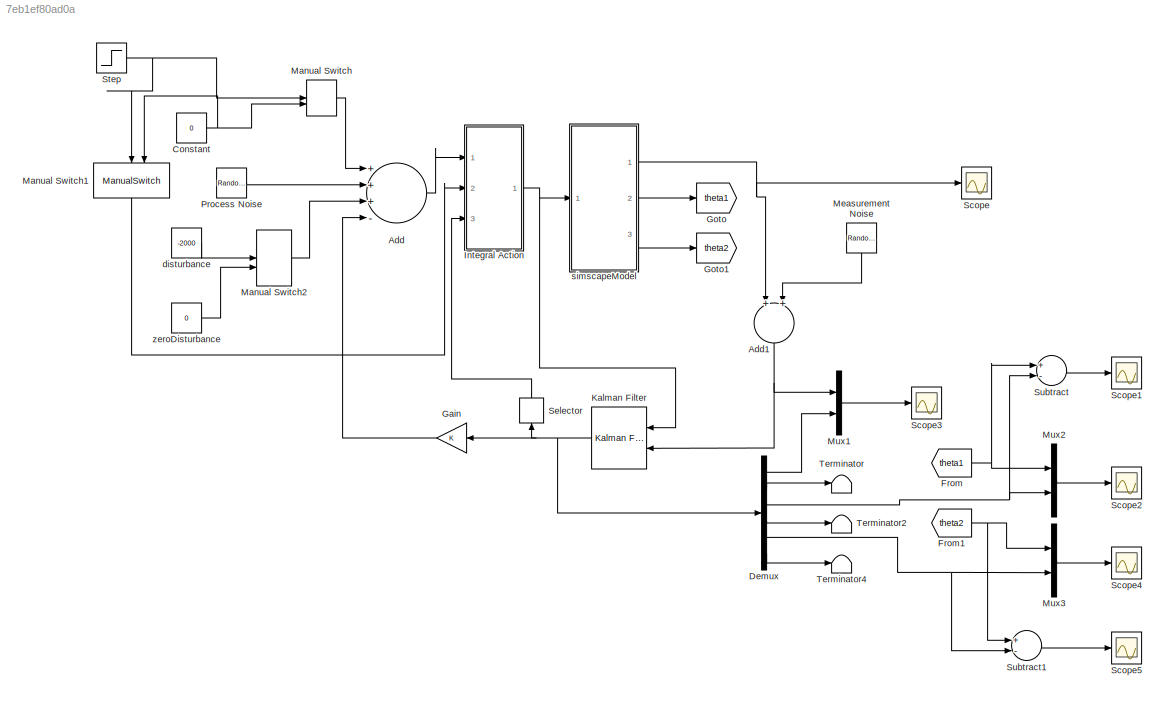
MODEL slx_7eb1ef80ad0a
KIND model
CONFIG AbsTol = auto
CONFIG FixedStep = auto
CONFIG MaxStep = auto
CONFIG MinStep = auto
CONFIG RelTol = 1e-3
CONFIG SampleTimeConstraint = Unconstrained
CONFIG Solver = VariableStepAuto
CONFIG SolverMode = Auto
CONFIG SolverName = VariableStepAuto
CONFIG StartTime = 0.0
CONFIG StopTime = 50
BLOCK [Sum] Add
  InputSameDT = off
  Inputs = +++-
  OutDataTypeStr = Inherit: Inherit via internal rule
  Ports = [4, 1]
  SaturateOnIntegerOverflow = off
BLOCK [Sum] Add1
  InputSameDT = off
  OutDataTypeStr = Inherit: Inherit via internal rule
  Ports = [2, 1]
  SaturateOnIntegerOverflow = off
BLOCK [Constant] Constant
  Value = 0
BLOCK [Demux] Demux
  DisplayOption = bar
  Outputs = 6
  Ports = [1, 6]
BLOCK [From] From
  GotoTag = theta1
BLOCK [From] From1
  GotoTag = theta2
BLOCK [Gain] Gain
  Gain = K
  Multiplication = Matrix(K*u)
  OutDataTypeStr = Inherit: Inherit via internal rule
  ParamDataTypeStr = Inherit: Inherit via internal rule
  SaturateOnIntegerOverflow = off
BLOCK [Goto] Goto
  GotoTag = theta1
BLOCK [Goto] Goto1
  GotoTag = theta2
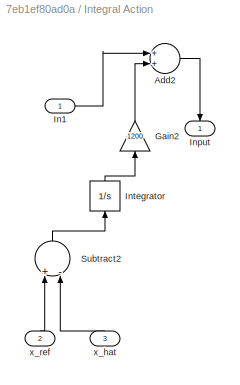
BLOCK [SubSystem] Integral Action
  Ports = [3, 1]
  RequestExecContextInheritance = off
  Variant = off
BLOCK [Sum] Integral Action/Add2
  InputSameDT = off
  OutDataTypeStr = Inherit: Inherit via internal rule
  Ports = [2, 1]
  SaturateOnIntegerOverflow = off
BLOCK [Gain] Integral Action/Gain2
  Gain = 1200
  OutDataTypeStr = Inherit: Inherit via internal rule
  ParamDataTypeStr = Inherit: Inherit via internal rule
  SaturateOnIntegerOverflow = off
BLOCK [Inport] Integral Action/In1
  IconDisplay = Port number
BLOCK [Outport] Integral Action/Input
  IconDisplay = Port number
BLOCK [Integrator] Integral Action/Integrator
  Ports = [1, 1]
BLOCK [Sum] Integral Action/Subtract2
  InputSameDT = off
  Inputs = +-
  OutDataTypeStr = Inherit: Inherit via internal rule
  Ports = [2, 1]
  SaturateOnIntegerOverflow = off
BLOCK [Inport] Integral Action/x_hat
  IconDisplay = Port number
  Port = 3
BLOCK [Inport] Integral Action/x_ref
  IconDisplay = Port number
  Port = 2
BLOCK [Reference] Kalman Filter  REF=ctrlSharedLib/Kalman Filter
  Ports = [2, 1]
  SourceBlock = ctrlSharedLib/Kalman Filter
  SourceType = ctrlKalmanFilter
BLOCK [ManualSwitch] Manual Switch
BLOCK [ManualSwitch] Manual Switch1
BLOCK [ManualSwitch] Manual Switch2
BLOCK [RandomNumber] Measurement Noise
  SampleTime = 0.1
  Variance = 0.001
BLOCK [Mux] Mux1
  DisplayOption = bar
  Inputs = 2
  Ports = [2, 1]
BLOCK [Mux] Mux2
  DisplayOption = bar
  Inputs = 2
  Ports = [2, 1]
BLOCK [Mux] Mux3
  DisplayOption = bar
  Inputs = 2
  Ports = [2, 1]
BLOCK [RandomNumber] Process Noise
  SampleTime = 0.1
  Variance = 0.2
BLOCK [Scope] Scope
  Ports = [1]
  ScopeSpecificationString = Simulink.scopes.TimeScopeBlockCfg('CurrentConfiguration', extmgr.ConfigurationSet(extmgr.Configuration('Core','General UI',true),extmgr.Configuration('Core','Source UI',true),extmgr.Configuration('Sources','WiredSimulink',true),extmgr.Configuration('Visuals','Time Domain',true,'SerializedDisplays',{struct('MinYLimReal','-4.22658','MaxYLimReal','2.46708','YLabelReal','','MinYLimMag','0.00000','MaxY...<+1368ch>
BLOCK [Scope] Scope1
  Ports = [1]
  ScopeSpecificationString = Simulink.scopes.TimeScopeBlockCfg('CurrentConfiguration', extmgr.ConfigurationSet(extmgr.Configuration('Core','General UI',true),extmgr.Configuration('Core','Source UI',true),extmgr.Configuration('Sources','WiredSimulink',true,'DataLoggingVariableName','ScopeData4'),extmgr.Configuration('Visuals','Time Domain',true,'SerializedDisplays',{struct('MinYLimReal','-0.20108','MaxYLimReal','0.16077','YLab...<+1367ch>
BLOCK [Scope] Scope2
  Ports = [1]
  ScopeSpecificationString = Simulink.scopes.TimeScopeBlockCfg('CurrentConfiguration', extmgr.ConfigurationSet(extmgr.Configuration('Core','General UI',true),extmgr.Configuration('Core','Source UI',true),extmgr.Configuration('Sources','WiredSimulink',true,'DataLoggingVariableName','ScopeData2'),extmgr.Configuration('Visuals','Time Domain',true,'SerializedDisplays',{struct('MinYLimReal','-0.14711','MaxYLimReal','0.30723','YLab...<+1410ch>
BLOCK [Scope] Scope3
  Ports = [1]
  ScopeSpecificationString = Simulink.scopes.TimeScopeBlockCfg('CurrentConfiguration', extmgr.ConfigurationSet(extmgr.Configuration('Core','General UI',true),extmgr.Configuration('Core','Source UI',true),extmgr.Configuration('Sources','WiredSimulink',true,'DataLoggingVariableName','ScopeData1'),extmgr.Configuration('Visuals','Time Domain',true,'SerializedDisplays',{struct('MinYLimReal','-4158.89855','MaxYLimReal','2822.64902'...<+1442ch>
BLOCK [Scope] Scope4
  Ports = [1]
  ScopeSpecificationString = Simulink.scopes.TimeScopeBlockCfg('CurrentConfiguration', extmgr.ConfigurationSet(extmgr.Configuration('Core','General UI',true),extmgr.Configuration('Core','Source UI',true),extmgr.Configuration('Sources','WiredSimulink',true,'DataLoggingVariableName','ScopeData3'),extmgr.Configuration('Visuals','Time Domain',true,'SerializedDisplays',{struct('MinYLimReal','-0.24373','MaxYLimReal','0.41493','YLab...<+1384ch>
BLOCK [Scope] Scope5
  Ports = [1]
  ScopeSpecificationString = Simulink.scopes.TimeScopeBlockCfg('CurrentConfiguration', extmgr.ConfigurationSet(extmgr.Configuration('Core','General UI',true),extmgr.Configuration('Core','Source UI',true),extmgr.Configuration('Sources','WiredSimulink',true,'DataLoggingVariableName','ScopeData5'),extmgr.Configuration('Visuals','Time Domain',true,'SerializedDisplays',{struct('MinYLimReal','-0.22813','MaxYLimReal','0.25868','YLab...<+1368ch>
BLOCK [Selector] Selector
  IndexOptions = Index vector (dialog)
  Indices = [1]
  InputPortWidth = 6
  OutputSizes = 1
  Ports = [1, 1]
BLOCK [Step] Step
  After = 10
  SampleTime = 0
BLOCK [Sum] Subtract
  InputSameDT = off
  Inputs = +-
  OutDataTypeStr = Inherit: Inherit via internal rule
  Ports = [2, 1]
  SaturateOnIntegerOverflow = off
BLOCK [Sum] Subtract1
  InputSameDT = off
  Inputs = +-
  OutDataTypeStr = Inherit: Inherit via internal rule
  Ports = [2, 1]
  SaturateOnIntegerOverflow = off
BLOCK [Terminator] Terminator
BLOCK [Terminator] Terminator2
BLOCK [Terminator] Terminator4
BLOCK [Constant] disturbance
  Value = -2000
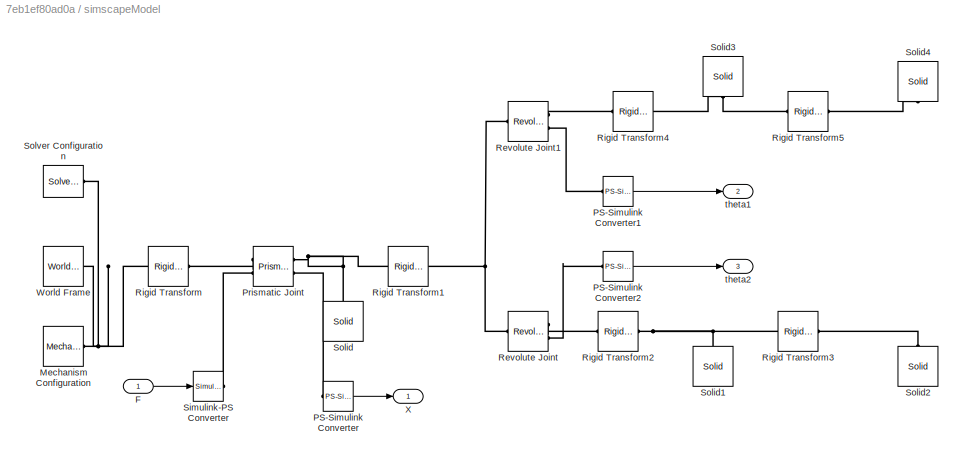
BLOCK [SubSystem] simscapeModel
  Ports = [1, 3]
  RequestExecContextInheritance = off
  Variant = off
BLOCK [Inport] simscapeModel/F
  IconDisplay = Port number
BLOCK [Reference] simscapeModel/Mechanism Configuration  REF=sm_lib/Utilities/Mechanism
Configuration
  Ports = [0, 0, 0, 0, 0, 0, 1]
  SourceBlock = sm_lib/Utilities/Mechanism\nConfiguration
  SourceType = Mechanism\nConfiguration
BLOCK [Reference] simscapeModel/PS-Simulink Converter  REF=nesl_utility/PS-Simulink
Converter
  Ports = [0, 1, 0, 0, 0, 1]
  SourceBlock = nesl_utility/PS-Simulink\nConverter
  SourceType = PS-Simulink\nConverter
BLOCK [Reference] simscapeModel/PS-Simulink Converter1  REF=nesl_utility/PS-Simulink
Converter
  Ports = [0, 1, 0, 0, 0, 1]
  SourceBlock = nesl_utility/PS-Simulink\nConverter
  SourceType = PS-Simulink\nConverter
BLOCK [Reference] simscapeModel/PS-Simulink Converter2  REF=nesl_utility/PS-Simulink
Converter
  Ports = [0, 1, 0, 0, 0, 1]
  SourceBlock = nesl_utility/PS-Simulink\nConverter
  SourceType = PS-Simulink\nConverter
BLOCK [Reference] simscapeModel/Prismatic Joint  REF=sm_lib/Joints/Prismatic
Joint
  Ports = [0, 0, 0, 0, 0, 2, 2]
  SourceBlock = sm_lib/Joints/Prismatic\nJoint
  SourceType = Prismatic\nJoint
BLOCK [Reference] simscapeModel/Revolute Joint  REF=sm_lib/Joints/Revolute Joint
  Ports = [0, 0, 0, 0, 0, 1, 2]
  SourceBlock = sm_lib/Joints/Revolute Joint
  SourceType = Revolute Joint
BLOCK [Reference] simscapeModel/Revolute Joint1  REF=sm_lib/Joints/Revolute Joint
  Ports = [0, 0, 0, 0, 0, 1, 2]
  SourceBlock = sm_lib/Joints/Revolute Joint
  SourceType = Revolute Joint
BLOCK [Reference] simscapeModel/Rigid Transform  REF=sm_lib/Frames and
Transforms/Rigid
Transform
  Ports = [0, 0, 0, 0, 0, 1, 1]
  SourceBlock = sm_lib/Frames and\nTransforms/Rigid\nTransform
  SourceType = Rigid\nTransform
BLOCK [Reference] simscapeModel/Rigid Transform1  REF=sm_lib/Frames and
Transforms/Rigid
Transform
  Ports = [0, 0, 0, 0, 0, 1, 1]
  SourceBlock = sm_lib/Frames and\nTransforms/Rigid\nTransform
  SourceType = Rigid\nTransform
BLOCK [Reference] simscapeModel/Rigid Transform2  REF=sm_lib/Frames and
Transforms/Rigid
Transform
  Ports = [0, 0, 0, 0, 0, 1, 1]
  SourceBlock = sm_lib/Frames and\nTransforms/Rigid\nTransform
  SourceType = Rigid\nTransform
BLOCK [Reference] simscapeModel/Rigid Transform3  REF=sm_lib/Frames and
Transforms/Rigid
Transform
  Ports = [0, 0, 0, 0, 0, 1, 1]
  SourceBlock = sm_lib/Frames and\nTransforms/Rigid\nTransform
  SourceType = Rigid\nTransform
BLOCK [Reference] simscapeModel/Rigid Transform4  REF=sm_lib/Frames and
Transforms/Rigid
Transform
  Ports = [0, 0, 0, 0, 0, 1, 1]
  SourceBlock = sm_lib/Frames and\nTransforms/Rigid\nTransform
  SourceType = Rigid\nTransform
BLOCK [Reference] simscapeModel/Rigid Transform5  REF=sm_lib/Frames and
Transforms/Rigid
Transform
  Ports = [0, 0, 0, 0, 0, 1, 1]
  SourceBlock = sm_lib/Frames and\nTransforms/Rigid\nTransform
  SourceType = Rigid\nTransform
BLOCK [Reference] simscapeModel/Simulink-PS Converter  REF=nesl_utility/Simulink-PS
Converter
  Ports = [1, 0, 0, 0, 0, 0, 1]
  SourceBlock = nesl_utility/Simulink-PS\nConverter
  SourceType = Simulink-PS\nConverter
BLOCK [Reference] simscapeModel/Solid  REF=sm_lib/Body Elements/Solid
  Ports = [0, 0, 0, 0, 0, 0, 1]
  SourceBlock = sm_lib/Body Elements/Solid
  SourceType = Solid
BLOCK [Reference] simscapeModel/Solid1  REF=sm_lib/Body Elements/Solid
  Ports = [0, 0, 0, 0, 0, 0, 1]
  SourceBlock = sm_lib/Body Elements/Solid
  SourceType = Solid
BLOCK [Reference] simscapeModel/Solid2  REF=sm_lib/Body Elements/Solid
  Ports = [0, 0, 0, 0, 0, 0, 1]
  SourceBlock = sm_lib/Body Elements/Solid
  SourceType = Solid
BLOCK [Reference] simscapeModel/Solid3  REF=sm_lib/Body Elements/Solid
  Ports = [0, 0, 0, 0, 0, 0, 1]
  SourceBlock = sm_lib/Body Elements/Solid
  SourceType = Solid
BLOCK [Reference] simscapeModel/Solid4  REF=sm_lib/Body Elements/Solid
  Ports = [0, 0, 0, 0, 0, 0, 1]
  SourceBlock = sm_lib/Body Elements/Solid
  SourceType = Solid
BLOCK [Reference] simscapeModel/Solver Configuration  REF=nesl_utility/Solver
Configuration
  Ports = [0, 0, 0, 0, 0, 0, 1]
  SourceBlock = nesl_utility/Solver\nConfiguration
  SourceType = Solver\nConfiguration
BLOCK [Reference] simscapeModel/World Frame  REF=sm_lib/Frames and
Transforms/World Frame
  Ports = [0, 0, 0, 0, 0, 0, 1]
  SourceBlock = sm_lib/Frames and\nTransforms/World Frame
  SourceType = World Frame
BLOCK [Outport] simscapeModel/X
  IconDisplay = Port number
BLOCK [Outport] simscapeModel/theta1
  IconDisplay = Port number
  Port = 2
BLOCK [Outport] simscapeModel/theta2
  IconDisplay = Port number
  Port = 3
BLOCK [Constant] zeroDisturbance
  Value = 0
NET Add1:1 -> Kalman Filter:2, Mux1:1
LINE Add:1 -> Integral Action:1
NET Constant:1 -> Manual Switch1:2, Manual Switch:2
LINE Demux:1 -> Mux1:2
LINE Demux:2 -> Terminator:1
NET Demux:3 -> Mux2:2, Subtract:2
LINE Demux:4 -> Terminator2:1
NET Demux:5 -> Mux3:2, Subtract1:2
LINE Demux:6 -> Terminator4:1
NET From1:1 -> Mux3:1, Subtract1:1
NET From:1 -> Mux2:1, Subtract:1
LINE Gain:1 -> Add:4
LINE Integral Action/Add2:1 -> Integral Action/Input:1
LINE Integral Action/Gain2:1 -> Integral Action/Add2:2
LINE Integral Action/In1:1 -> Integral Action/Add2:1
LINE Integral Action/Integrator:1 -> Integral Action/Gain2:1
LINE Integral Action/Subtract2:1 -> Integral Action/Integrator:1
LINE Integral Action/x_hat:1 -> Integral Action/Subtract2:2
LINE Integral Action/x_ref:1 -> Integral Action/Subtract2:1
NET Integral Action:1 -> Kalman Filter:1, simscapeModel:1
NET Kalman Filter:1 -> Demux:1, Gain:1, Selector:1
LINE Manual Switch1:1 -> Integral Action:2
LINE Manual Switch2:1 -> Add:3
LINE Manual Switch:1 -> Add:1
LINE Measurement Noise:1 -> Add1:2
LINE Mux1:1 -> Scope3:1
LINE Mux2:1 -> Scope2:1
LINE Mux3:1 -> Scope4:1
LINE Process Noise:1 -> Add:2
LINE Selector:1 -> Integral Action:3
NET Step:1 -> Manual Switch1:1, Manual Switch:1
LINE Subtract1:1 -> Scope5:1
LINE Subtract:1 -> Scope1:1
LINE disturbance:1 -> Manual Switch2:1
LINE simscapeModel/F:1 -> simscapeModel/Simulink-PS Converter:1
LINE simscapeModel/PS-Simulink Converter1:1 -> simscapeModel/theta1:1
LINE simscapeModel/PS-Simulink Converter2:1 -> simscapeModel/theta2:1
LINE simscapeModel/PS-Simulink Converter:1 -> simscapeModel/X:1
NET simscapeModel:1 -> Add1:1, Scope:1
LINE simscapeModel:2 -> Goto:1
LINE simscapeModel:3 -> Goto1:1
LINE zeroDisturbance:1 -> Manual Switch2:2
PNET net1: simscapeModel/Mechanism Configuration:RConn1 -- simscapeModel/Rigid Transform:LConn1 -- simscapeModel/Solver Configuration:RConn1 -- simscapeModel/World Frame:RConn1
PLINE simscapeModel/PS-Simulink Converter1:LConn1 -- simscapeModel/Revolute Joint1:RConn2
PLINE simscapeModel/PS-Simulink Converter2:LConn1 -- simscapeModel/Revolute Joint:RConn2
PLINE simscapeModel/PS-Simulink Converter:LConn1 -- simscapeModel/Prismatic Joint:RConn2
PLINE simscapeModel/Prismatic Joint:LConn1 -- simscapeModel/Rigid Transform:RConn1
PLINE simscapeModel/Prismatic Joint:LConn2 -- simscapeModel/Simulink-PS Converter:RConn1
PNET net2: simscapeModel/Prismatic Joint:RConn1 -- simscapeModel/Rigid Transform1:LConn1 -- simscapeModel/Solid:RConn1
PNET net3: simscapeModel/Revolute Joint1:LConn1 -- simscapeModel/Revolute Joint:LConn1 -- simscapeModel/Rigid Transform1:RConn1
PLINE simscapeModel/Revolute Joint1:RConn1 -- simscapeModel/Rigid Transform4:LConn1
PLINE simscapeModel/Revolute Joint:RConn1 -- simscapeModel/Rigid Transform2:LConn1
PNET net4: simscapeModel/Rigid Transform2:RConn1 -- simscapeModel/Rigid Transform3:LConn1 -- simscapeModel/Solid1:RConn1
PLINE simscapeModel/Rigid Transform3:RConn1 -- simscapeModel/Solid2:RConn1
PNET net5: simscapeModel/Rigid Transform4:RConn1 -- simscapeModel/Rigid Transform5:LConn1 -- simscapeModel/Solid3:RConn1
PLINE simscapeModel/Rigid Transform5:RConn1 -- simscapeModel/Solid4:RConn1
note: NET lines group one-source signal fan-out (src -> all destinations, sorted); 1:1 wires keep LINE; PNET lines group multi-terminal physical nets as a canonical sorted terminal list (undirected conserving connections); 2-terminal nets keep the pairwise PLINE form
